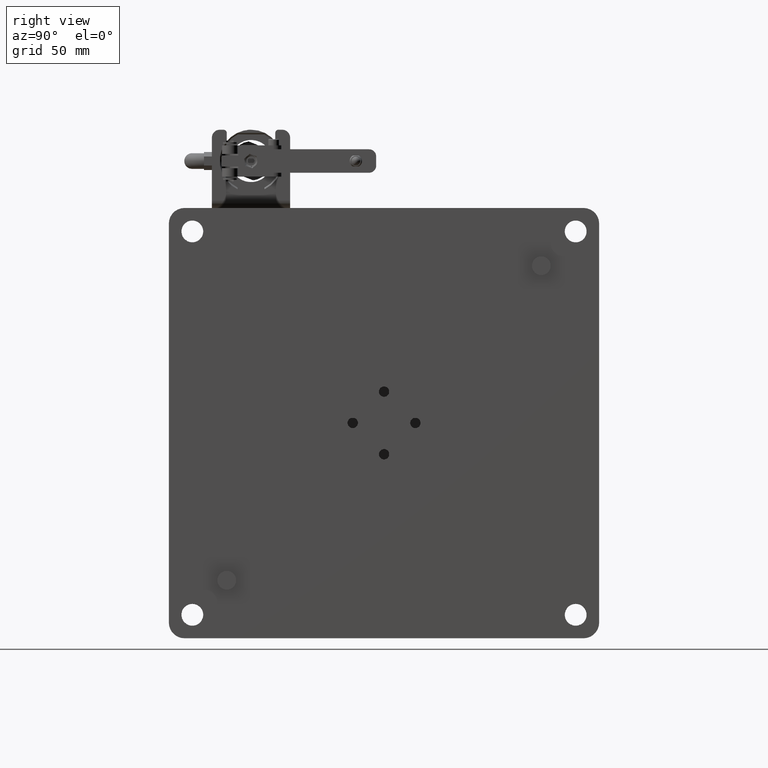
[diagram: clean part render]
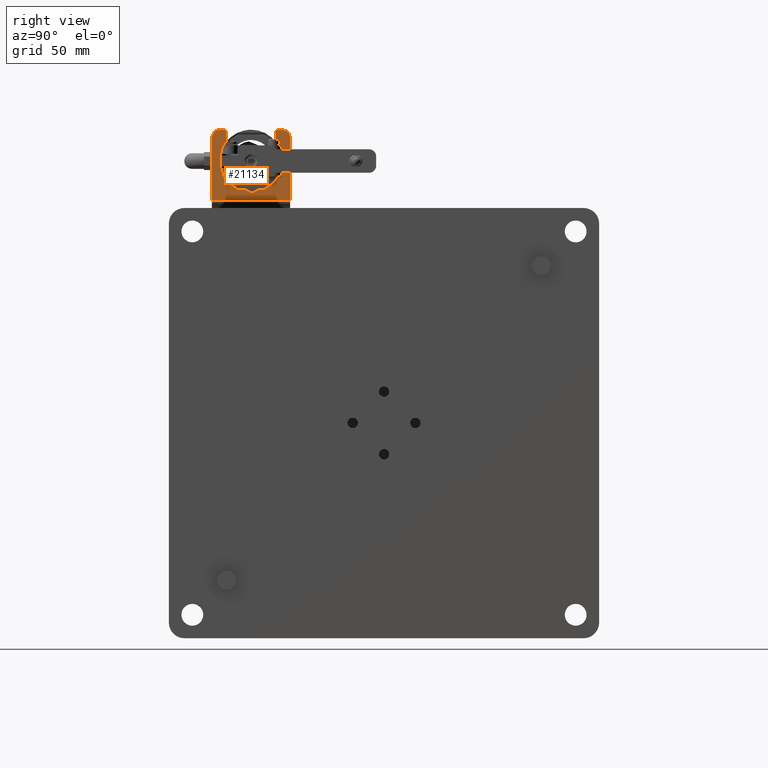
[diagram: same view with one face highlighted and labeled with its STEP entity id]
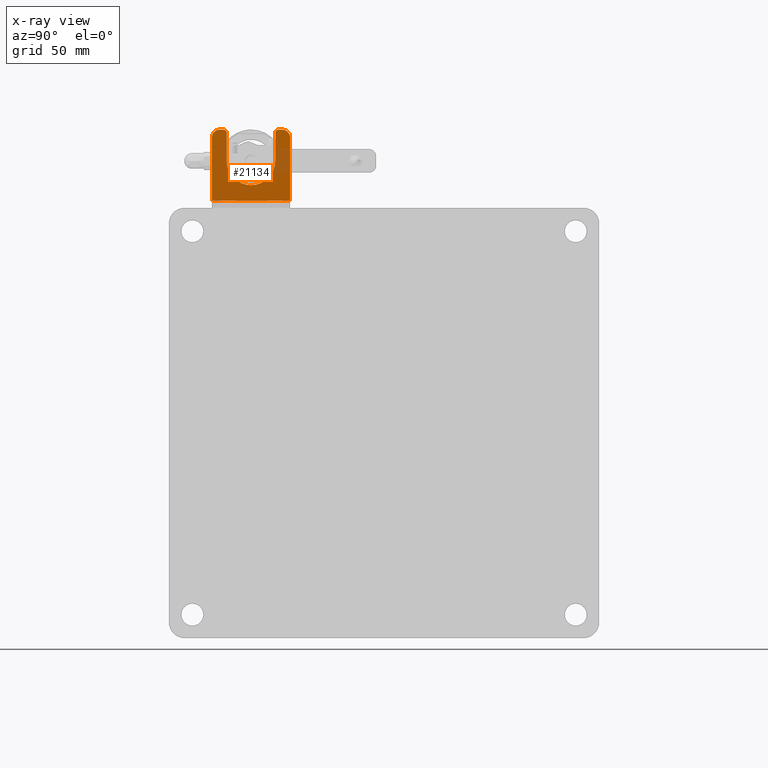
[diagram: x-ray of the same camera — body ghosted, the highlighted face saturated]
A machine part, right view. The second image highlights one B-rep face of the part: STEP entity #21134.
The next image is the same camera in x-ray: the body ghosted, the highlighted face saturated — about 13% of this face is hidden behind the body in this view.
In plain terms, the highlighted planar face has unit normal (1, 0, -0).
Its self-contained STEP definition (entity closure, byte-faithful):
#59 = EDGE_CURVE ( 'NONE', #4033, #3733, #9102, .T. ) ;
#419 = CARTESIAN_POINT ( 'NONE',  ( 658.2532529064187656, -116.0730653247215542, 608.5684939441116512 ) ) ;
#486 = CIRCLE ( 'NONE', #11404, 5.000000000000004441 ) ;
#493 = CARTESIAN_POINT ( 'NONE',  ( 658.2532529064187656, -76.07306532472156846, 613.5684939441116512 ) ) ;
#601 = DIRECTION ( 'NONE',  ( 0.000000000000000000, 0.000000000000000000, 1.000000000000000000 ) ) ;
#652 = FACE_OUTER_BOUND ( 'NONE', #20190, .T. ) ;
#662 = ORIENTED_EDGE ( 'NONE', *, *, #24627, .T. ) ;
#708 = AXIS2_PLACEMENT_3D ( 'NONE', #419, #20910, #10545 ) ;
#710 = CARTESIAN_POINT ( 'NONE',  ( 658.2532529064187656, -81.50452065721997030, 588.2735913113863262 ) ) ;
#960 = CARTESIAN_POINT ( 'NONE',  ( 658.2532529064187656, -88.70529687264408381, 579.9138261095858979 ) ) ;
#1025 = CARTESIAN_POINT ( 'NONE',  ( 658.2532529064187656, -116.0730653247215542, 613.5684939441116512 ) ) ;
#1092 = CARTESIAN_POINT ( 'NONE',  ( 658.2532529064187656, -87.20317042228695925, 580.8560035208298586 ) ) ;
#1215 = CARTESIAN_POINT ( 'NONE',  ( 658.2532529064185383, -101.5736138450610468, 579.0770817367831569 ) ) ;
#1290 = CARTESIAN_POINT ( 'NONE',  ( 658.2532529064187656, -78.57306532472156846, 613.5684939441116512 ) ) ;
#1333 = VERTEX_POINT ( 'NONE', #9951 ) ;
#1353 = CARTESIAN_POINT ( 'NONE',  ( 658.2532529064184246, -104.4449858702216432, 580.5237544217502546 ) ) ;
#1420 = LINE ( 'NONE', #17327, #8245 ) ;
#1492 = CARTESIAN_POINT ( 'NONE',  ( 658.2532529064185383, -87.53653219525295981, 580.6308814759594270 ) ) ;
#1838 = B_SPLINE_CURVE_WITH_KNOTS ( 'NONE', 3,
 ( #10825, #10948, #24605, #16881, #14653, #14397, #22382, #18836, #12674, #14525, #6891, #4388, #710, #12419, #20431, #2421, #10445, #12545, #4515, #18449, #16495, #8724, #25116, #17401, #13329, #23548, #24990, #21316, #17013, #1092, #3457, #15431, #1492, #18963, #960, #13456, #7269, #23023, #5027, #19352, #5423, #7138, #3202, #7016, #7406, #23421, #21447, #15300, #8983, #5159, #13056, #17528, #9374, #15037, #21055, #11473, #19493, #25512, #3070, #15164, #19225, #11087, #19092, #1215, #9116, #25385, #21581, #9512, #23155, #3327, #17138, #7530, #1353, #13194, #21189, #15554, #11218, #5553, #13588, #3585, #9239, #17260, #25244, #23295, #5297, #11343, #16216, #5956, #7798, #9635, #2121, #25773, #17650, #12124, #3976, #23682, #19878, #9769, #19623, #22099, #24199, #24072 ),
 .UNSPECIFIED., .F., .F.,
 ( 4, 1, 1, 1, 1, 2, 2, 1, 1, 1, 1, 2, 2, 1, 1, 1, 2, 2, 2, 1, 1, 1, 2, 2, 1, 1, 1, 1, 2, 2, 1, 1, 1, 1, 2, 2, 2, 1, 1, 1, 1, 2, 2, 1, 1, 1, 1, 2, 2, 1, 1, 1, 2, 2, 2, 1, 1, 1, 2, 2, 1, 1, 1, 1, 2, 2, 1, 1, 1, 1, 2, 2, 4 ),
 ( 0.000000000000000000, 0.03124999999994388516, 0.04687499999991583122, 0.05468749999989816479, 0.05859374999988926219, 0.06054687499988849197, 0.06249999999988772870, 0.09374999999994100552, 0.1093749999999676648, 0.1171874999999809874, 0.1210937499999845401, 0.1230468749999861777, 0.1249999999999878153, 0.1562500000000227873, 0.1718750000000404676, 0.1796875000000493217, 0.1835937500000537348, 0.1875000000000581479, 0.2500000000000823230, 0.2812500000000923706, 0.2968750000000977551, 0.3046875000001000866, 0.3085937500001016409, 0.3125000000001031397, 0.3437500000000849321, 0.3593750000000770495, 0.3671875000000730527, 0.3710937500000697775, 0.3730468750000681677, 0.3750000000000665024, 0.4062500000000421885, 0.4218750000000309197, 0.4296875000000253131, 0.4335937500000220934, 0.4355468750000200395, 0.4375000000000179856, 0.4999999999999260591, 0.5312499999998800959, 0.5468749999998563371, 0.5546874999998443467, 0.5585937499998377964, 0.5605468749998352429, 0.5624999999998325784, 0.5937499999998071543, 0.6093749999997952749, 0.6171874999997887246, 0.6210937499997869482, 0.6230468749997873923, 0.6249999999997877254, 0.6562499999997575273, 0.6718749999997438715, 0.6796874999997387645, 0.6835937499997365441, 0.6874999999997342126, 0.7499999999997538636, 0.7812499999997637445, 0.7968749999997688516, 0.8046874999997711830, 0.8085937499997752909, 0.8124999999997793987, 0.8437499999998031575, 0.8593749999998152589, 0.8671874999998242517, 0.8710937499998289146, 0.8730468749998341327, 0.8749999999998394618, 0.9062499999998949729, 0.9218749999999228395, 0.9296874999999366063, 0.9335937499999436007, 0.9355468749999503730, 0.9374999999999572564, 1.000000000000000000 ),
 .UNSPECIFIED. ) ;
#2024 = ORIENTED_EDGE ( 'NONE', *, *, #15611, .T. ) ;
#2026 = CARTESIAN_POINT ( 'NONE',  ( 658.2532529064186519, -71.07306532472156846, 568.3050939441116043 ) ) ;
#2121 = CARTESIAN_POINT ( 'NONE',  ( 658.2532529064188793, -110.4732223352039000, 587.8338246398907359 ) ) ;
#2421 = CARTESIAN_POINT ( 'NONE',  ( 658.2532529064187656, -81.63830267364130577, 587.9214965385693858 ) ) ;
#2530 = LINE ( 'NONE', #4372, #18755 ) ;
#2701 = CARTESIAN_POINT ( 'NONE',  ( 658.2532529064187656, -113.5730653247215685, 611.5684939441116512 ) ) ;
#3055 = DIRECTION ( 'NONE',  ( -3.582884835289501964E-15, 0.000000000000000000, -1.000000000000000000 ) ) ;
#3070 = CARTESIAN_POINT ( 'NONE',  ( 658.2532529064187656, -98.86260994754479725, 578.3215469065434036 ) ) ;
#3202 = CARTESIAN_POINT ( 'NONE',  ( 658.2532529064186519, -91.54586398054765084, 578.7293595921230462 ) ) ;
#3327 = CARTESIAN_POINT ( 'NONE',  ( 658.2532529064186519, -103.7767587281522310, 580.1138882394089933 ) ) ;
#3457 = CARTESIAN_POINT ( 'NONE',  ( 658.2532529064186519, -87.36870008548501687, 580.7431722149704001 ) ) ;
#3585 = CARTESIAN_POINT ( 'NONE',  ( 658.2532529064186519, -108.7855557481156978, 584.6985990418049823 ) ) ;
#3591 = DIRECTION ( 'NONE',  ( 1.000000000000000000, 4.870765123932444511E-18, -3.604919222179023497E-15 ) ) ;
#3733 = VERTEX_POINT ( 'NONE', #15076 ) ;
#3976 = CARTESIAN_POINT ( 'NONE',  ( 658.2532529064189930, -111.2291084378766470, 590.3169043178399988 ) ) ;
#4033 = VERTEX_POINT ( 'NONE', #16509 ) ;
#4170 = ORIENTED_EDGE ( 'NONE', *, *, #13466, .T. ) ;
#4372 = CARTESIAN_POINT ( 'NONE',  ( 658.2532529064186519, -121.0730653247215827, 567.5684939441113102 ) ) ;
#4388 = CARTESIAN_POINT ( 'NONE',  ( 658.2532529064187656, -81.35793897905328720, 588.6870623153080260 ) ) ;
#4434 = VECTOR ( 'NONE', #25879, 1000.000000000000000 ) ;
#4515 = CARTESIAN_POINT ( 'NONE',  ( 658.2532529064187656, -82.17840070142985098, 586.6639859724012922 ) ) ;
#4815 = CARTESIAN_POINT ( 'NONE',  ( 658.2532529064187656, -78.57306532472156846, 611.5684939441116512 ) ) ;
#5027 = CARTESIAN_POINT ( 'NONE',  ( 658.2532529064187656, -90.24604314897578661, 579.2054540335741422 ) ) ;
#5159 = CARTESIAN_POINT ( 'NONE',  ( 658.2532529064186519, -94.18451366324721619, 578.1547819907169696 ) ) ;
#5199 = CARTESIAN_POINT ( 'NONE',  ( 658.2532529064187656, -96.07306532472156846, 613.5684939441116512 ) ) ;
#5297 = CARTESIAN_POINT ( 'NONE',  ( 658.2532529064186519, -109.7277331591954947, 586.2007254920525838 ) ) ;
#5423 = CARTESIAN_POINT ( 'NONE',  ( 658.2532529064187656, -90.33839602050156259, 579.1683369336270744 ) ) ;
#5553 = CARTESIAN_POINT ( 'NONE',  ( 658.2532529064188793, -107.9467426328905333, 583.5799561271415996 ) ) ;
#5580 = CARTESIAN_POINT ( 'NONE',  ( 658.2532529064187656, -76.07306532472156846, 608.5684939441116512 ) ) ;
#5717 = CARTESIAN_POINT ( 'NONE',  ( 658.2532529064186519, -71.07306532472156846, 567.5684939441113102 ) ) ;
#5956 = CARTESIAN_POINT ( 'NONE',  ( 658.2532529064187656, -110.3991159887510918, 587.6505569277916265 ) ) ;
#6096 = VECTOR ( 'NONE', #11752, 1000.000000000000000 ) ;
#6891 = CARTESIAN_POINT ( 'NONE',  ( 658.2532529064187656, -81.09550859132188805, 589.5227212384639870 ) ) ;
#7016 = CARTESIAN_POINT ( 'NONE',  ( 658.2532529064186519, -92.39329258850959548, 578.5078640065074751 ) ) ;
#7138 = CARTESIAN_POINT ( 'NONE',  ( 658.2532529064187656, -90.83481822268825567, 578.9717887819168709 ) ) ;
#7269 = CARTESIAN_POINT ( 'NONE',  ( 658.2532529064187656, -89.94399685067671157, 579.3306722400867557 ) ) ;
#7347 = EDGE_CURVE ( 'NONE', #8012, #19146, #13632, .T. ) ;
#7406 = CARTESIAN_POINT ( 'NONE',  ( 658.2532529064185383, -92.82147569843870372, 578.4124508309855628 ) ) ;
#7530 = CARTESIAN_POINT ( 'NONE',  ( 658.2532529064187656, -104.3345893188489413, 580.4535466544107294 ) ) ;
#7668 = DIRECTION ( 'NONE',  ( 0.000000000000000000, 0.000000000000000000, -1.000000000000000000 ) ) ;
#7798 = CARTESIAN_POINT ( 'NONE',  ( 658.2532529064189930, -110.4361052352519437, 587.7414717683684557 ) ) ;
#8012 = VERTEX_POINT ( 'NONE', #493 ) ;
#8245 = VECTOR ( 'NONE', #15625, 1000.000000000000000 ) ;
#8677 = ORIENTED_EDGE ( 'NONE', *, *, #17669, .T. ) ;
#8724 = CARTESIAN_POINT ( 'NONE',  ( 658.2532529064188793, -82.95811803501044324, 585.3069699499743592 ) ) ;
#8735 = ORIENTED_EDGE ( 'NONE', *, *, #13101, .T. ) ;
#8983 = CARTESIAN_POINT ( 'NONE',  ( 658.2532529064186519, -93.22351689824226639, 578.3326506943715231 ) ) ;
#9051 = DIRECTION ( 'NONE',  ( -3.582884835289501964E-15, 0.000000000000000000, -1.000000000000000000 ) ) ;
#9102 = LINE ( 'NONE', #17127, #15187 ) ;
#9116 = CARTESIAN_POINT ( 'NONE',  ( 658.2532529064186519, -101.6615143080356489, 579.1109617099326670 ) ) ;
#9149 = CARTESIAN_POINT ( 'NONE',  ( 658.2532529064186519, -71.07306532472156846, 568.3050939441116043 ) ) ;
#9239 = CARTESIAN_POINT ( 'NONE',  ( 658.2532529064189930, -108.8983870539303354, 584.8641287049524635 ) ) ;
#9374 = CARTESIAN_POINT ( 'NONE',  ( 658.2532529064186519, -97.25485895256986169, 578.1008114201148373 ) ) ;
#9512 = CARTESIAN_POINT ( 'NONE',  ( 658.2532529064187656, -102.2653930806768159, 579.3494998564397065 ) ) ;
#9635 = CARTESIAN_POINT ( 'NONE',  ( 658.2532529064188793, -110.4605818073771530, 587.8021772021143079 ) ) ;
#9703 = VECTOR ( 'NONE', #10184, 1000.000000000000000 ) ;
#9769 = CARTESIAN_POINT ( 'NONE',  ( 658.2532529064187656, -111.3027674636656172, 590.6862858152069293 ) ) ;
#9881 = EDGE_CURVE ( 'NONE', #20945, #13337, #21415, .T. ) ;
#9951 = CARTESIAN_POINT ( 'NONE',  ( 658.2532529064187656, -71.07306532472156846, 608.5684939441116512 ) ) ;
#10184 = DIRECTION ( 'NONE',  ( 4.870765123932384422E-18, -1.000000000000000000, -0.000000000000000000 ) ) ;
#10445 = CARTESIAN_POINT ( 'NONE',  ( 658.2532529064191067, -81.64930137208058625, 587.8934546807631705 ) ) ;
#10545 = DIRECTION ( 'NONE',  ( 0.000000000000000000, 0.000000000000000000, 1.000000000000000000 ) ) ;
#10691 = CARTESIAN_POINT ( 'NONE',  ( 658.2532529064186519, -121.0730653247215969, 568.3050939441116043 ) ) ;
#10825 = CARTESIAN_POINT ( 'NONE',  ( 658.2532529064187656, -80.57306532472155425, 593.5684939441116512 ) ) ;
#10948 = CARTESIAN_POINT ( 'NONE',  ( 658.2532529064188793, -80.57306532472154004, 593.0945547638676771 ) ) ;
#10968 = VERTEX_POINT ( 'NONE', #1025 ) ;
#10992 = VERTEX_POINT ( 'NONE', #21650 ) ;
#10995 = EDGE_CURVE ( 'NONE', #10992, #10968, #1420, .T. ) ;
#11073 = CARTESIAN_POINT ( 'NONE',  ( 658.2532529064187656, -111.5730653247215827, 593.5684939441116512 ) ) ;
#11087 = CARTESIAN_POINT ( 'NONE',  ( 658.2532529064186519, -100.9544969537417245, 578.8533675984907632 ) ) ;
#11218 = CARTESIAN_POINT ( 'NONE',  ( 658.2532529064187656, -107.4114277390218035, 582.9865198643238955 ) ) ;
#11343 = CARTESIAN_POINT ( 'NONE',  ( 658.2532529064187656, -110.1267462359032976, 587.0211752358241029 ) ) ;
#11404 = AXIS2_PLACEMENT_3D ( 'NONE', #5580, #13616, #21606 ) ;
#11473 = CARTESIAN_POINT ( 'NONE',  ( 658.2532529064185383, -98.68938700571634115, 578.2906965360640470 ) ) ;
#11752 = DIRECTION ( 'NONE',  ( 3.582884835289501964E-15, -0.000000000000000000, 1.000000000000000000 ) ) ;
#12109 = ORIENTED_EDGE ( 'NONE', *, *, #20406, .T. ) ;
#12124 = CARTESIAN_POINT ( 'NONE',  ( 658.2532529064188793, -111.1336952623757668, 589.8887212079189339 ) ) ;
#12165 = CIRCLE ( 'NONE', #14702, 2.000000000000001776 ) ;
#12406 = DIRECTION ( 'NONE',  ( -3.582884835289501964E-15, 0.000000000000000000, -1.000000000000000000 ) ) ;
#12419 = CARTESIAN_POINT ( 'NONE',  ( 658.2532529064186519, -81.58165311737852221, 588.0679454238397739 ) ) ;
#12483 = EDGE_CURVE ( 'NONE', #10968, #18187, #20446, .T. ) ;
#12545 = CARTESIAN_POINT ( 'NONE',  ( 658.2532529064187656, -81.85407123702744059, 587.3761661881349028 ) ) ;
#12674 = CARTESIAN_POINT ( 'NONE',  ( 658.2532529064186519, -80.82611828715540980, 590.7789493212778780 ) ) ;
#13056 = CARTESIAN_POINT ( 'NONE',  ( 658.2532529064187656, -95.12536222323608115, 578.0685263700426049 ) ) ;
#13101 = EDGE_CURVE ( 'NONE', #18187, #13647, #2530, .T. ) ;
#13194 = CARTESIAN_POINT ( 'NONE',  ( 658.2532529064187656, -104.4988571460581142, 580.5584812362095590 ) ) ;
#13329 = CARTESIAN_POINT ( 'NONE',  ( 658.2532529064188793, -83.68495144517810047, 584.1913930684170282 ) ) ;
#13337 = VERTEX_POINT ( 'NONE', #17483 ) ;
#13456 = CARTESIAN_POINT ( 'NONE',  ( 658.2532529064186519, -89.52574661642005083, 579.5148130328911975 ) ) ;
#13466 = EDGE_CURVE ( 'NONE', #1333, #8012, #486, .T. ) ;
#13588 = CARTESIAN_POINT ( 'NONE',  ( 658.2532529064185383, -108.5152835619972791, 584.3180866936094162 ) ) ;
#13616 = DIRECTION ( 'NONE',  ( 1.000000000000000000, 4.870765123932442970E-18, -3.604919222179023497E-15 ) ) ;
#13632 = LINE ( 'NONE', #5199, #14436 ) ;
#13647 = VERTEX_POINT ( 'NONE', #10691 ) ;
#14233 = ORIENTED_EDGE ( 'NONE', *, *, #7347, .T. ) ;
#14397 = CARTESIAN_POINT ( 'NONE',  ( 658.2532529064187656, -80.79527456652323281, 590.9521363213292489 ) ) ;
#14436 = VECTOR ( 'NONE', #15204, 1000.000000000000000 ) ;
#14525 = CARTESIAN_POINT ( 'NONE',  ( 658.2532529064187656, -80.92325334801238057, 590.2539435988479681 ) ) ;
#14653 = CARTESIAN_POINT ( 'NONE',  ( 658.2532529064186519, -80.76107557024893424, 591.1564175400800423 ) ) ;
#14669 = DIRECTION ( 'NONE',  ( 1.000000000000000000, 4.870765123932446822E-18, -3.604919222179023497E-15 ) ) ;
#14702 = AXIS2_PLACEMENT_3D ( 'NONE', #2701, #14669, #601 ) ;
#15010 = EDGE_CURVE ( 'NONE', #16270, #13647, #20775, .T. ) ;
#15037 = CARTESIAN_POINT ( 'NONE',  ( 658.2532529064187656, -98.07582969009483520, 578.1951605719750660 ) ) ;
#15076 = CARTESIAN_POINT ( 'NONE',  ( 658.2532529064187656, -80.57306532472155425, 593.5684939441116512 ) ) ;
#15164 = CARTESIAN_POINT ( 'NONE',  ( 658.2532529064188793, -99.38761567015018272, 578.4186819674384878 ) ) ;
#15187 = VECTOR ( 'NONE', #3055, 1000.000000000000000 ) ;
#15204 = DIRECTION ( 'NONE',  ( 4.870765123932442200E-18, -1.000000000000000000, -1.745139049879453810E-32 ) ) ;
#15300 = CARTESIAN_POINT ( 'NONE',  ( 658.2532529064185383, -93.19085719581482863, 578.3387918051721499 ) ) ;
#15431 = CARTESIAN_POINT ( 'NONE',  ( 658.2532529064187656, -87.47959829261786524, 580.6686179290826431 ) ) ;
#15554 = CARTESIAN_POINT ( 'NONE',  ( 658.2532529064188793, -106.2768058212956248, 581.8519767785131762 ) ) ;
#15611 = EDGE_CURVE ( 'NONE', #3733, #20945, #1838, .T. ) ;
#15625 = DIRECTION ( 'NONE',  ( 4.870765123932442200E-18, -1.000000000000000000, -1.745139049879453810E-32 ) ) ;
#15920 = CARTESIAN_POINT ( 'NONE',  ( 658.2532529064186519, -111.5730653247215685, 567.5684939441113102 ) ) ;
#16057 = CARTESIAN_POINT ( 'NONE',  ( 658.2532529064187656, -121.0730653247215827, 608.5684939441116512 ) ) ;
#16216 = CARTESIAN_POINT ( 'NONE',  ( 658.2532529064187656, -110.3108870287240109, 587.4394254700747524 ) ) ;
#16270 = VERTEX_POINT ( 'NONE', #9149 ) ;
#16495 = CARTESIAN_POINT ( 'NONE',  ( 658.2532529064185383, -82.85390771512587094, 585.4731306964300757 ) ) ;
#16509 = CARTESIAN_POINT ( 'NONE',  ( 658.2532529064187656, -80.57306532472156846, 611.5684939441116512 ) ) ;
#16881 = CARTESIAN_POINT ( 'NONE',  ( 658.2532529064186519, -80.69975323210202589, 591.5656145650181088 ) ) ;
#17007 = ORIENTED_EDGE ( 'NONE', *, *, #15010, .F. ) ;
#17013 = CARTESIAN_POINT ( 'NONE',  ( 658.2532529064186519, -86.82265807399983260, 581.1262757070282987 ) ) ;
#17127 = CARTESIAN_POINT ( 'NONE',  ( 658.2532529064186519, -80.57306532472156846, 567.5684939441113102 ) ) ;
#17138 = CARTESIAN_POINT ( 'NONE',  ( 658.2532529064188793, -104.1684285723866168, 580.3493363345329499 ) ) ;
#17260 = CARTESIAN_POINT ( 'NONE',  ( 658.2532529064188793, -108.9729413397860611, 584.9750269120487474 ) ) ;
#17327 = CARTESIAN_POINT ( 'NONE',  ( 658.2532529064187656, -96.07306532472156846, 613.5684939441116512 ) ) ;
#17401 = CARTESIAN_POINT ( 'NONE',  ( 658.2532529064187656, -83.06305261681089291, 585.1427021227810883 ) ) ;
#17483 = CARTESIAN_POINT ( 'NONE',  ( 658.2532529064187656, -111.5730653247215685, 611.5684939441116512 ) ) ;
#17528 = CARTESIAN_POINT ( 'NONE',  ( 658.2532529064186519, -96.54691687546431922, 578.0684777311463449 ) ) ;
#17650 = CARTESIAN_POINT ( 'NONE',  ( 658.2532529064187656, -110.9121996767768934, 589.0412925999628442 ) ) ;
#17669 = EDGE_CURVE ( 'NONE', #19146, #4033, #21508, .T. ) ;
#18187 = VERTEX_POINT ( 'NONE', #16057 ) ;
#18449 = CARTESIAN_POINT ( 'NONE',  ( 658.2532529064187656, -82.61845961998989196, 585.8648005406525954 ) ) ;
#18755 = VECTOR ( 'NONE', #12406, 1000.000000000000000 ) ;
#18836 = CARTESIAN_POINT ( 'NONE',  ( 658.2532529064187656, -80.82113439868133753, 590.8063495934879938 ) ) ;
#18963 = CARTESIAN_POINT ( 'NONE',  ( 658.2532529064185383, -88.02956976324306027, 580.3085198743286810 ) ) ;
#19046 = ORIENTED_EDGE ( 'NONE', *, *, #12483, .T. ) ;
#19092 = CARTESIAN_POINT ( 'NONE',  ( 658.2532529064186519, -101.3679679575730290, 578.9999492766373805 ) ) ;
#19146 = VERTEX_POINT ( 'NONE', #1290 ) ;
#19225 = CARTESIAN_POINT ( 'NONE',  ( 658.2532529064187656, -100.1188380306580683, 578.5909372107746549 ) ) ;
#19352 = CARTESIAN_POINT ( 'NONE',  ( 658.2532529064186519, -90.30674858272301719, 579.1809774614522439 ) ) ;
#19493 = CARTESIAN_POINT ( 'NONE',  ( 658.2532529064186519, -98.77688299812498940, 578.3061141095195126 ) ) ;
#19623 = CARTESIAN_POINT ( 'NONE',  ( 658.2532529064191067, -111.3089075603963494, 590.7189400387849219 ) ) ;
#19878 = CARTESIAN_POINT ( 'NONE',  ( 658.2532529064185383, -111.2909625597009864, 590.6245847987959223 ) ) ;
#20190 = EDGE_LOOP ( 'NONE', ( #8735, #17007, #662, #4170, #14233, #8677, #23068, #2024, #22209, #12109, #24554, #19046 ) ) ;
#20406 = EDGE_CURVE ( 'NONE', #13337, #10992, #12165, .T. ) ;
#20431 = CARTESIAN_POINT ( 'NONE',  ( 658.2532529064191067, -81.61553309053404348, 587.9800449608372901 ) ) ;
#20446 = CIRCLE ( 'NONE', #708, 5.000000000000004441 ) ;
#20775 = LINE ( 'NONE', #2026, #9703 ) ;
#20910 = DIRECTION ( 'NONE',  ( 1.000000000000000000, 4.870765123932442970E-18, -3.604919222179023497E-15 ) ) ;
#20945 = VERTEX_POINT ( 'NONE', #11073 ) ;
#21055 = CARTESIAN_POINT ( 'NONE',  ( 658.2532529064187656, -98.48507463741601953, 578.2564917765873815 ) ) ;
#21134 = ADVANCED_FACE ( 'NONE', ( #652 ), #22574, .T. ) ;
#21189 = CARTESIAN_POINT ( 'NONE',  ( 658.2532529064186519, -105.4501662003219593, 581.1803800644328248 ) ) ;
#21316 = CARTESIAN_POINT ( 'NONE',  ( 658.2532529064186519, -86.08452750745883009, 581.6948166361992207 ) ) ;
#21415 = LINE ( 'NONE', #15920, #4434 ) ;
#21447 = CARTESIAN_POINT ( 'NONE',  ( 658.2532529064186519, -93.12915617940257107, 578.3505967091413140 ) ) ;
#21508 = CIRCLE ( 'NONE', #24851, 2.000000000000001776 ) ;
#21581 = CARTESIAN_POINT ( 'NONE',  ( 658.2532529064187656, -101.7481045880714277, 579.1447299914691484 ) ) ;
#21606 = DIRECTION ( 'NONE',  ( 0.000000000000000000, 0.000000000000000000, 1.000000000000000000 ) ) ;
#21650 = CARTESIAN_POINT ( 'NONE',  ( 658.2532529064187656, -113.5730653247215685, 613.5684939441116512 ) ) ;
#22099 = CARTESIAN_POINT ( 'NONE',  ( 658.2532529064189930, -111.4868097282071915, 591.6801176057605289 ) ) ;
#22209 = ORIENTED_EDGE ( 'NONE', *, *, #9881, .T. ) ;
#22382 = CARTESIAN_POINT ( 'NONE',  ( 658.2532529064187656, -80.81068938504091648, 590.8646552190897410 ) ) ;
#22574 = PLANE ( 'NONE',  #25582 ) ;
#23023 = CARTESIAN_POINT ( 'NONE',  ( 658.2532529064188793, -90.15512830839726632, 579.2424432800703471 ) ) ;
#23068 = ORIENTED_EDGE ( 'NONE', *, *, #59, .T. ) ;
#23155 = CARTESIAN_POINT ( 'NONE',  ( 658.2532529064186519, -102.9775732963940698, 579.6738293208587720 ) ) ;
#23295 = CARTESIAN_POINT ( 'NONE',  ( 658.2532529064188793, -109.3330393944749517, 585.5249983826439575 ) ) ;
#23421 = CARTESIAN_POINT ( 'NONE',  ( 658.2532529064186519, -93.03668445489036287, 578.3685778975464018 ) ) ;
#23548 = CARTESIAN_POINT ( 'NONE',  ( 658.2532529064186519, -84.35654815945750329, 583.3647534472444249 ) ) ;
#23577 = LINE ( 'NONE', #5717, #6096 ) ;
#23682 = CARTESIAN_POINT ( 'NONE',  ( 658.2532529064189930, -111.2729813713024214, 590.5321130742863716 ) ) ;
#24072 = CARTESIAN_POINT ( 'NONE',  ( 658.2532529064187656, -111.5730653247215827, 593.5684939441116512 ) ) ;
#24199 = CARTESIAN_POINT ( 'NONE',  ( 658.2532529064187656, -111.5730653247215685, 592.6202600432234249 ) ) ;
#24542 = DIRECTION ( 'NONE',  ( 1.000000000000000000, 4.870765123932442200E-18, -3.582884835289501964E-15 ) ) ;
#24554 = ORIENTED_EDGE ( 'NONE', *, *, #10995, .T. ) ;
#24605 = CARTESIAN_POINT ( 'NONE',  ( 658.2532529064186519, -80.60541117341443851, 592.3865469646361817 ) ) ;
#24627 = EDGE_CURVE ( 'NONE', #16270, #1333, #23577, .T. ) ;
#24851 = AXIS2_PLACEMENT_3D ( 'NONE', #4815, #3591, #7668 ) ;
#24928 = CARTESIAN_POINT ( 'NONE',  ( 658.2532529064186519, -96.07306532472156846, 567.5684939441113102 ) ) ;
#24990 = CARTESIAN_POINT ( 'NONE',  ( 658.2532529064188793, -85.49109124476640886, 582.2301315299582711 ) ) ;
#25116 = CARTESIAN_POINT ( 'NONE',  ( 658.2532529064189930, -83.02832580235518378, 585.1965733986063469 ) ) ;
#25244 = CARTESIAN_POINT ( 'NONE',  ( 658.2532529064189930, -109.0106777928776580, 585.0319608146418204 ) ) ;
#25385 = CARTESIAN_POINT ( 'NONE',  ( 658.2532529064186519, -101.7200627302841127, 579.1337312930355665 ) ) ;
#25512 = CARTESIAN_POINT ( 'NONE',  ( 658.2532529064185383, -98.83519889280881898, 578.3165610231167193 ) ) ;
#25582 = AXIS2_PLACEMENT_3D ( 'NONE', #24928, #24542, #9051 ) ;
#25773 = CARTESIAN_POINT ( 'NONE',  ( 658.2532529064191067, -110.6697704869544339, 588.3302468420931746 ) ) ;
#25879 = DIRECTION ( 'NONE',  ( 3.582884835289501964E-15, -0.000000000000000000, 1.000000000000000000 ) ) ;